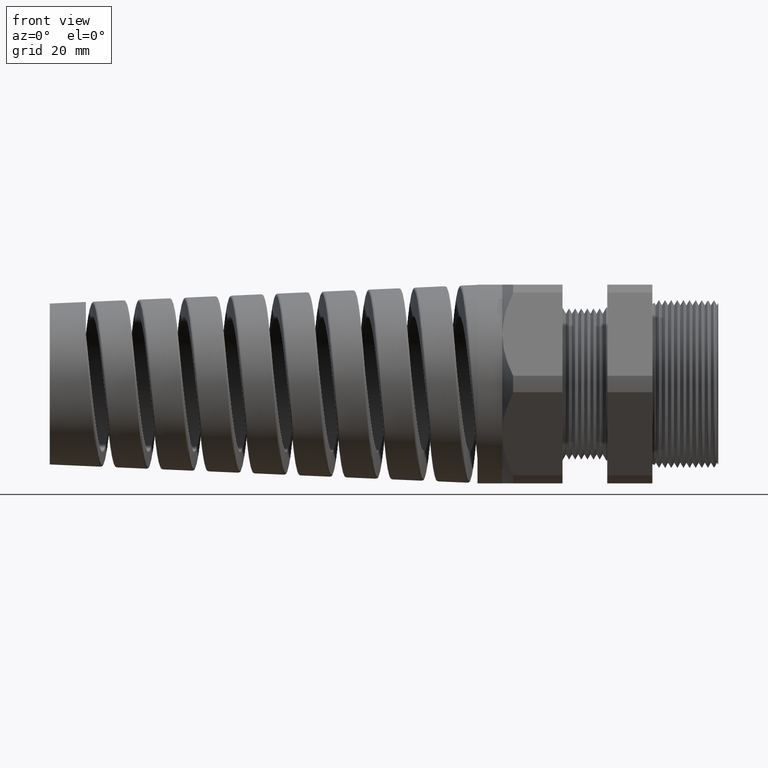
[diagram: clean part render]
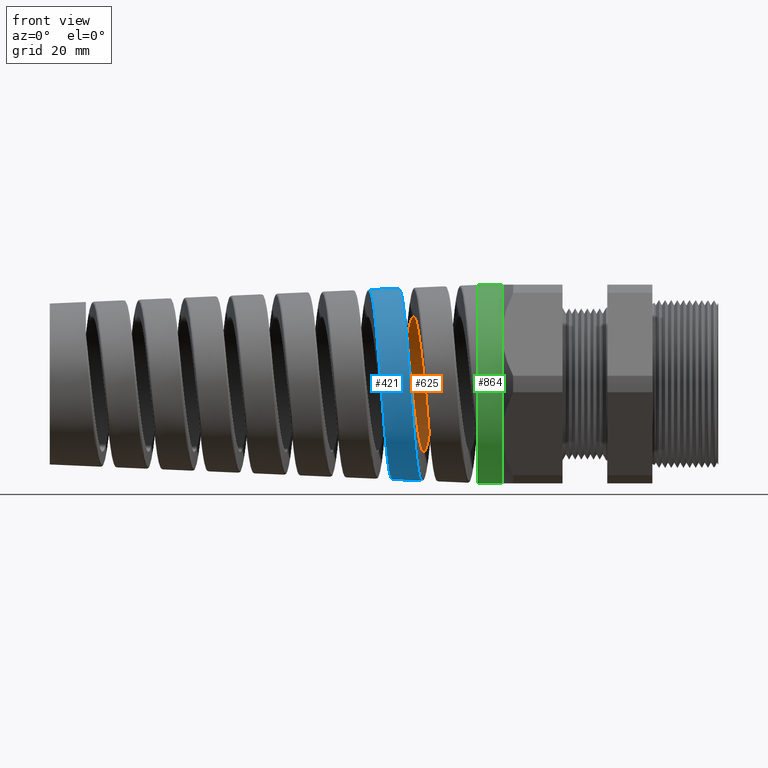
[diagram: same view with three faces highlighted in distinct colors, each labeled with its STEP entity id]
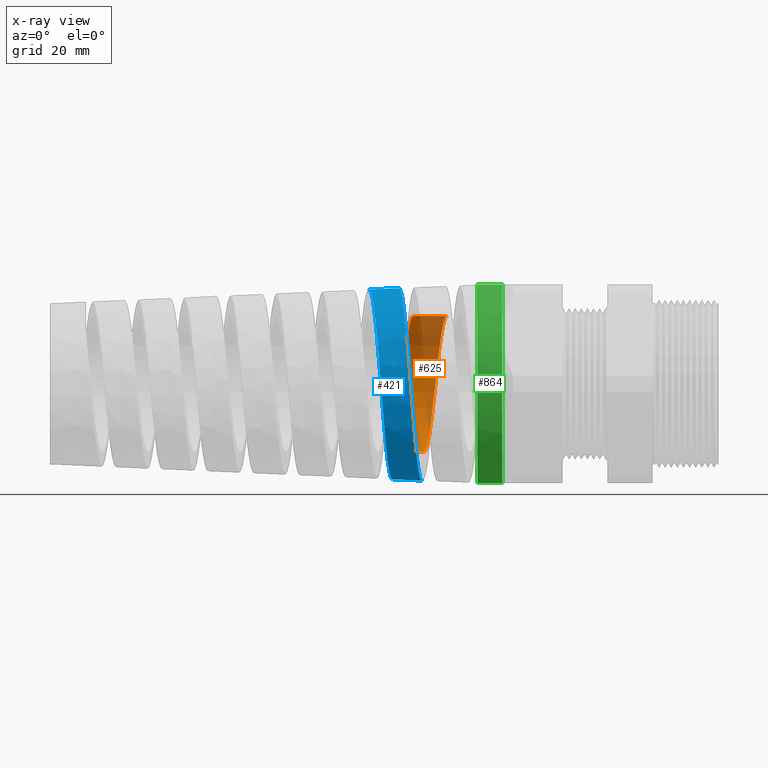
[diagram: x-ray of the same camera — body ghosted, the three highlighted faces saturated]
A machine part, front view with three faces highlighted in distinct colors.
The next image is the same camera in x-ray (body ghosted, the three faces saturated) — at least one of them is partly hidden behind the body in this view.
Their STEP definitions:

[orange] entity #625 — the highlighted cylindrical surface (partial cylindrical patch) has radius 11.2776 mm, axis along (1, 0, 0).
#534 = VERTEX_POINT ( 'NONE', #3127 ) ;
#536 = EDGE_CURVE ( 'NONE', #557, #534, #3153, .T. ) ;
#542 = VERTEX_POINT ( 'NONE', #3225 ) ;
#544 = EDGE_CURVE ( 'NONE', #542, #545, #3253, .T. ) ;
#545 = VERTEX_POINT ( 'NONE', #3249 ) ;
#557 = VERTEX_POINT ( 'NONE', #3331 ) ;
#602 = ORIENTED_EDGE ( 'NONE', *, *, #544, .F. ) ;
#603 = ORIENTED_EDGE ( 'NONE', *, *, #604, .T. ) ;
#604 = EDGE_CURVE ( 'NONE', #542, #557, #3755, .T. ) ;
#605 = ORIENTED_EDGE ( 'NONE', *, *, #536, .T. ) ;
#606 = ORIENTED_EDGE ( 'NONE', *, *, #607, .T. ) ;
#607 = EDGE_CURVE ( 'NONE', #534, #545, #3782, .T. ) ;
#625 = ADVANCED_FACE ( 'NONE', ( #4015 ), #4045, .F. ) ;
#626 = EDGE_LOOP ( 'NONE', ( #602, #603, #605, #606 ) ) ;
#3127 = CARTESIAN_POINT ( 'NONE',  ( -1.804156613593479000, -7.993109776149777300E-013, -0.4439999999999999500 ) ) ;
#3150 = DIRECTION ( 'NONE',  ( 1.000000000000000000, 0.0000000000000000000, 0.0000000000000000000 ) ) ;
#3151 = VECTOR ( 'NONE', #3150, 39.37007874015748100 ) ;
#3152 = CARTESIAN_POINT ( 'NONE',  ( 0.09602717987635048200, 0.0000000000000000000, -0.4439999999999999500 ) ) ;
#3153 = LINE ( 'NONE', #3152, #3151 ) ;
#3225 = CARTESIAN_POINT ( 'NONE',  ( -1.873335097499513500, -9.036739737416877400E-013, 0.4439999999999999500 ) ) ;
#3249 = CARTESIAN_POINT ( 'NONE',  ( -1.654087278508647300, -2.064225962009495700E-015, 0.4439999999999998400 ) ) ;
#3250 = DIRECTION ( 'NONE',  ( 1.000000000000000000, 0.0000000000000000000, 0.0000000000000000000 ) ) ;
#3251 = VECTOR ( 'NONE', #3250, 39.37007874015748100 ) ;
#3252 = CARTESIAN_POINT ( 'NONE',  ( 0.09602717987635048200, 5.437431788214247900E-017, 0.4439999999999999500 ) ) ;
#3253 = LINE ( 'NONE', #3252, #3251 ) ;
#3331 = CARTESIAN_POINT ( 'NONE',  ( -2.023267017907917500, 5.974188738582084800E-013, -0.4440000000000001200 ) ) ;
#3751 = CARTESIAN_POINT ( 'NONE',  ( -1.884240774798019200, 0.1006247164348107200, 0.4326898346896138600 ) ) ;
#3752 = CARTESIAN_POINT ( 'NONE',  ( -1.879570079397866200, 0.05799957447675929000, 0.4411477708951501700 ) ) ;
#3753 = CARTESIAN_POINT ( 'NONE',  ( -1.876473564830262000, 0.02919501560179628400, 0.4440000000000594000 ) ) ;
#3754 = CARTESIAN_POINT ( 'NONE',  ( -1.873335097499513500, -9.036739737416877400E-013, 0.4439999999999999500 ) ) ;
#3755 = B_SPLINE_CURVE_WITH_KNOTS ( 'NONE', 3,
 ( #3754, #3753, #3752, #3751, #3826, #3825, #3824, #3823, #3822, #3821, #3820, #3819, #3818, #3817, #3816, #3815, #3814, #3813, #3812, #3811, #3810, #3809, #3808, #3807, #3806, #3805, #3804, #3803, #3802, #3801, #3800, #3799, #3798, #3797, #3796, #3795, #3794, #3793, #3792, #3791, #3790, #3789, #3788, #3787, #3786, #3785, #3784, #3783 ),
 .UNSPECIFIED., .F., .F.,
 ( 4, 2, 2, 2, 2, 2, 2, 2, 2, 2, 2, 2, 2, 2, 2, 2, 2, 2, 2, 2, 2, 2, 2, 4 ),
 ( 0.1191075343456694400, 0.1213240954981226900, 0.1224323760743493000, 0.1235406566505759300, 0.1257572178030291800, 0.1268654983792557900, 0.1279737789554824300, 0.1301903401079356500, 0.1324069012603889000, 0.1335151818366155400, 0.1346234624128421500, 0.1368400235652954000, 0.1390565847177486500, 0.1412731458702019000, 0.1423814264464285100, 0.1434897070226551500, 0.1445979875988817600, 0.1457062681751084000, 0.1479228293275616500, 0.1490311099037882600, 0.1501393904800149000, 0.1523559516324681200, 0.1534642322086947600, 0.1545725127849213700 ),
 .UNSPECIFIED. ) ;
#3782 = B_SPLINE_CURVE_WITH_KNOTS ( 'NONE', 3,
 ( #3872, #3871, #3870, #3869, #3868, #3867, #3866, #3865, #3864, #3863, #3862, #3861, #3860, #3859, #3858, #3857, #3856, #3855, #3854, #3853, #3852, #3851, #3850, #3849, #3848, #3847, #3846, #3845, #3844, #3843, #3842, #3841, #3840, #3839, #3838, #3837, #3836, #3835, #3834, #3833, #3832, #3831, #3830, #3829, #3828, #3827, #3909 ),
 .UNSPECIFIED., .F., .F.,
 ( 4, 2, 2, 2, 2, 2, 2, 2, 2, 2, 2, 2, 2, 1, 2, 2, 2, 2, 2, 2, 2, 2, 2, 4 ),
 ( 0.5217600750463258200, 0.5239750681227484100, 0.5250825646609597100, 0.5261900611991710000, 0.5284050542755935900, 0.5306200473520161800, 0.5317275438902274700, 0.5328350404284387700, 0.5350500335048612400, 0.5361575300430725400, 0.5372650265812838300, 0.5394800196577064200, 0.5405875161959177200, 0.5416950127341290100, 0.5428025092723403100, 0.5439100058105516000, 0.5461249988869741900, 0.5472324954251854800, 0.5483399919633967800, 0.5505549850398193700, 0.5516624815780306600, 0.5527699781162419600, 0.5549849711926645400, 0.5571999642690871300 ),
 .UNSPECIFIED. ) ;
#3783 = CARTESIAN_POINT ( 'NONE',  ( -2.023267017907917500, 5.974188738582084800E-013, -0.4440000000000001200 ) ) ;
#3784 = CARTESIAN_POINT ( 'NONE',  ( -2.021710753485003800, 0.01447894811160286400, -0.4439999999999806300 ) ) ;
#3785 = CARTESIAN_POINT ( 'NONE',  ( -2.020150761367548200, 0.02899281427301372500, -0.4432935197495961300 ) ) ;
#3786 = CARTESIAN_POINT ( 'NONE',  ( -2.017007561947826500, 0.05809075079820869700, -0.4404261488639785700 ) ) ;
#3787 = CARTESIAN_POINT ( 'NONE',  ( -2.015431613133340100, 0.07260746070612968100, -0.4382636855171241900 ) ) ;
#3788 = CARTESIAN_POINT ( 'NONE',  ( -2.010748398774573300, 0.1153331790322962200, -0.4297416239873486600 ) ) ;
#3789 = CARTESIAN_POINT ( 'NONE',  ( -2.007654899336825100, 0.1430109742275536600, -0.4213421768619057800 ) ) ;
#3790 = CARTESIAN_POINT ( 'NONE',  ( -2.002967351662065200, 0.1833055066395086200, -0.4046559445055690800 ) ) ;
#3791 = CARTESIAN_POINT ( 'NONE',  ( -2.001388156907470100, 0.1966032185532649000, -0.3983669763372115800 ) ) ;
#3792 = CARTESIAN_POINT ( 'NONE',  ( -1.998250062426940100, 0.2223439874233220900, -0.3845935837195584300 ) ) ;
#3793 = CARTESIAN_POINT ( 'NONE',  ( -1.996691262655744300, 0.2347890506221657900, -0.3771200645692513500 ) ) ;
#3794 = CARTESIAN_POINT ( 'NONE',  ( -1.992024033823218900, 0.2708788302735031200, -0.3529850207597427500 ) ) ;
#3795 = CARTESIAN_POINT ( 'NONE',  ( -1.988925368499194300, 0.2932900676460246100, -0.3346253092082303600 ) ) ;
#3796 = CARTESIAN_POINT ( 'NONE',  ( -1.984205364831399300, 0.3243399332492596400, -0.3035686051545749600 ) ) ;
#3797 = CARTESIAN_POINT ( 'NONE',  ( -1.982633798874287700, 0.3341629949440410000, -0.2927143296583625300 ) ) ;
#3798 = CARTESIAN_POINT ( 'NONE',  ( -1.979514171935572000, 0.3525634137304311500, -0.2702695418948657400 ) ) ;
#3799 = CARTESIAN_POINT ( 'NONE',  ( -1.977960564786812100, 0.3611773135192382100, -0.2586428241237353500 ) ) ;
#3800 = CARTESIAN_POINT ( 'NONE',  ( -1.974851063271036100, 0.3772434275653239700, -0.2345901929545260200 ) ) ;
#3801 = CARTESIAN_POINT ( 'NONE',  ( -1.973295350324039100, 0.3846956752932833000, -0.2221642788047406300 ) ) ;
#3802 = CARTESIAN_POINT ( 'NONE',  ( -1.970167258698988700, 0.3984162827998202800, -0.1964998599647322400 ) ) ;
#3803 = CARTESIAN_POINT ( 'NONE',  ( -1.968586567679733200, 0.4047106303321518800, -0.1831881403775555400 ) ) ;
#3804 = CARTESIAN_POINT ( 'NONE',  ( -1.963885380510103500, 0.4214303403622504700, -0.1427684297647648600 ) ) ;
#3805 = CARTESIAN_POINT ( 'NONE',  ( -1.960790328172910000, 0.4298080193913166300, -0.1150707841376022400 ) ) ;
#3806 = CARTESIAN_POINT ( 'NONE',  ( -1.954558202884127700, 0.4411207960359969600, -0.05821221692821356600 ) ) ;
#3807 = CARTESIAN_POINT ( 'NONE',  ( -1.951393798377498300, 0.4440146795749524400, -0.02877798894754072000 ) ) ;
#3808 = CARTESIAN_POINT ( 'NONE',  ( -1.945159274529914400, 0.4439852057969564900, 0.02922918677190084300 ) ) ;
#3809 = CARTESIAN_POINT ( 'NONE',  ( -1.942064875775401300, 0.4411554494867839800, 0.05802125481865734500 ) ) ;
#3810 = CARTESIAN_POINT ( 'NONE',  ( -1.937368002073090300, 0.4326334891531947200, 0.1008782098313943400 ) ) ;
#3811 = CARTESIAN_POINT ( 'NONE',  ( -1.935786320091959400, 0.4290512896592893500, 0.1151656509510397800 ) ) ;
#3812 = CARTESIAN_POINT ( 'NONE',  ( -1.932654872872431300, 0.4205812588446530300, 0.1430368519855044800 ) ) ;
#3813 = CARTESIAN_POINT ( 'NONE',  ( -1.931098426322826100, 0.4156870006174683800, 0.1566829363183298600 ) ) ;
#3814 = CARTESIAN_POINT ( 'NONE',  ( -1.926434355738343700, 0.3990678745879169800, 0.1967682177959802500 ) ) ;
#3815 = CARTESIAN_POINT ( 'NONE',  ( -1.923327840876944300, 0.3854017028556949200, 0.2223982951074343600 ) ) ;
#3816 = CARTESIAN_POINT ( 'NONE',  ( -1.917025471781001800, 0.3528138392831169400, 0.2711417877072248000 ) ) ;
#3817 = CARTESIAN_POINT ( 'NONE',  ( -1.913924228714552600, 0.3343927970284820100, 0.2935212810924538500 ) ) ;
#3818 = CARTESIAN_POINT ( 'NONE',  ( -1.909258836442522900, 0.3036992177269642300, 0.3242099727671892100 ) ) ;
#3819 = CARTESIAN_POINT ( 'NONE',  ( -1.907701560389771100, 0.2929539592018784400, 0.3339559554893555300 ) ) ;
#3820 = CARTESIAN_POINT ( 'NONE',  ( -1.904567336763992400, 0.2704122685082130400, 0.3524568164457972900 ) ) ;
#3821 = CARTESIAN_POINT ( 'NONE',  ( -1.902986679538590800, 0.2585823730980703600, 0.3612241331537031100 ) ) ;
#3822 = CARTESIAN_POINT ( 'NONE',  ( -1.898294818323770000, 0.2222746961079832800, 0.3854566534239605200 ) ) ;
#3823 = CARTESIAN_POINT ( 'NONE',  ( -1.895200047126281300, 0.1967573812886922700, 0.3990800793602535800 ) ) ;
#3824 = CARTESIAN_POINT ( 'NONE',  ( -1.890520208696573300, 0.1565370532618622400, 0.4157436050795435000 ) ) ;
#3825 = CARTESIAN_POINT ( 'NONE',  ( -1.888948495100799100, 0.1427538770939663100, 0.4206799311003589500 ) ) ;
#3826 = CARTESIAN_POINT ( 'NONE',  ( -1.885801929612058100, 0.1147354750193612000, 0.4291690163886989200 ) ) ;
#3827 = CARTESIAN_POINT ( 'NONE',  ( -1.657199796367902800, 0.02892940424544281100, 0.4440000000000005100 ) ) ;
#3828 = CARTESIAN_POINT ( 'NONE',  ( -1.660317270808932700, 0.05790223333831248700, 0.4411818936953143000 ) ) ;
#3829 = CARTESIAN_POINT ( 'NONE',  ( -1.666620161748849600, 0.1153639235958358700, 0.4297502729292002100 ) ) ;
#3830 = CARTESIAN_POINT ( 'NONE',  ( -1.669722330881802800, 0.1430862531025257300, 0.4213076092335549800 ) ) ;
#3831 = CARTESIAN_POINT ( 'NONE',  ( -1.674393307353202900, 0.1832012550362696900, 0.4047008086344639500 ) ) ;
#3832 = CARTESIAN_POINT ( 'NONE',  ( -1.675953161532201200, 0.1963264155146055000, 0.3985033188049736400 ) ) ;
#3833 = CARTESIAN_POINT ( 'NONE',  ( -1.679093649045415800, 0.2220698067504008900, 0.3847518128056470200 ) ) ;
#3834 = CARTESIAN_POINT ( 'NONE',  ( -1.680675328612190700, 0.2346920700207728000, 0.3771831720170789600 ) ) ;
#3835 = CARTESIAN_POINT ( 'NONE',  ( -1.685369370394721200, 0.2709623128199503100, 0.3529326805004977000 ) ) ;
#3836 = CARTESIAN_POINT ( 'NONE',  ( -1.688466017254198500, 0.2933211091044129500, 0.3345774891453626200 ) ) ;
#3837 = CARTESIAN_POINT ( 'NONE',  ( -1.693152403073675500, 0.3241326968422056900, 0.3037841950465219300 ) ) ;
#3838 = CARTESIAN_POINT ( 'NONE',  ( -1.694728471351159000, 0.3339873057174051500, 0.2929205253866905000 ) ) ;
#3839 = CARTESIAN_POINT ( 'NONE',  ( -1.697876244408849500, 0.3525422189021085200, 0.2703034192620657500 ) ) ;
#3840 = CARTESIAN_POINT ( 'NONE',  ( -1.699438580748270100, 0.3611934685699717500, 0.2586213904563533500 ) ) ;
#3841 = CARTESIAN_POINT ( 'NONE',  ( -1.704113266577388600, 0.3853223863082773100, 0.2224896401328254100 ) ) ;
#3842 = CARTESIAN_POINT ( 'NONE',  ( -1.707212864384856800, 0.3989923664753729500, 0.1969643855319085600 ) ) ;
#3843 = CARTESIAN_POINT ( 'NONE',  ( -1.711928187565247900, 0.4157717538125960700, 0.1564714611358674300 ) ) ;
#3844 = CARTESIAN_POINT ( 'NONE',  ( -1.713507271897957400, 0.4207172251481137200, 0.1426329571543229800 ) ) ;
#3845 = CARTESIAN_POINT ( 'NONE',  ( -1.716633991182829000, 0.4291428781263678700, 0.1148195721832000300 ) ) ;
#3846 = CARTESIAN_POINT ( 'NONE',  ( -1.719746528063548700, 0.4361665382895751900, 0.08672518910772994400 ) ) ;
#3847 = CARTESIAN_POINT ( 'NONE',  ( -1.722858667757319200, 0.4404247334081164400, 0.05807957041475189700 ) ) ;
#3848 = CARTESIAN_POINT ( 'NONE',  ( -1.725985415732247000, 0.4432799499133505100, 0.02915593082015662300 ) ) ;
#3849 = CARTESIAN_POINT ( 'NONE',  ( -1.727564664377471800, 0.4440043679721974400, 0.01447530263190974200 ) ) ;
#3850 = CARTESIAN_POINT ( 'NONE',  ( -1.732279248929962800, 0.4439912039677694200, -0.02935069774219408900 ) ) ;
#3851 = CARTESIAN_POINT ( 'NONE',  ( -1.735379182371178200, 0.4411260216994473700, -0.05816265173437516800 ) ) ;
#3852 = CARTESIAN_POINT ( 'NONE',  ( -1.740054485864617900, 0.4326539683624838200, -0.1007785142254228300 ) ) ;
#3853 = CARTESIAN_POINT ( 'NONE',  ( -1.741616868681738600, 0.4291293069141579600, -0.1148827803200254000 ) ) ;
#3854 = CARTESIAN_POINT ( 'NONE',  ( -1.744764699031141400, 0.4206362862053410500, -0.1428815243271964700 ) ) ;
#3855 = CARTESIAN_POINT ( 'NONE',  ( -1.746340233115880200, 0.4156881571209371000, -0.1566849202283322500 ) ) ;
#3856 = CARTESIAN_POINT ( 'NONE',  ( -1.751025929672191900, 0.3990011961780918200, -0.1969194714564570500 ) ) ;
#3857 = CARTESIAN_POINT ( 'NONE',  ( -1.754122813937773600, 0.3853649912945718600, -0.2224320986375387400 ) ) ;
#3858 = CARTESIAN_POINT ( 'NONE',  ( -1.758817889909983300, 0.3611279390283105900, -0.2587163802469920100 ) ) ;
#3859 = CARTESIAN_POINT ( 'NONE',  ( -1.760399870389687000, 0.3523598705766871100, -0.2705391391806246100 ) ) ;
#3860 = CARTESIAN_POINT ( 'NONE',  ( -1.763539717737658800, 0.3338372512539678500, -0.2930897369349674300 ) ) ;
#3861 = CARTESIAN_POINT ( 'NONE',  ( -1.765099249312348100, 0.3240819835579595900, -0.3038359737722674000 ) ) ;
#3862 = CARTESIAN_POINT ( 'NONE',  ( -1.769769700834942700, 0.2933720447754787400, -0.3345243899094179600 ) ) ;
#3863 = CARTESIAN_POINT ( 'NONE',  ( -1.772872155491893600, 0.2709870476383851000, -0.3529311630880785400 ) ) ;
#3864 = CARTESIAN_POINT ( 'NONE',  ( -1.779176451505404500, 0.2222615744692593200, -0.3854791542754523700 ) ) ;
#3865 = CARTESIAN_POINT ( 'NONE',  ( -1.782292895462469900, 0.1965790955881643900, -0.3991611171831285800 ) ) ;
#3866 = CARTESIAN_POINT ( 'NONE',  ( -1.786961349471784000, 0.1564850024365615500, -0.4157615645844565100 ) ) ;
#3867 = CARTESIAN_POINT ( 'NONE',  ( -1.788518678690426800, 0.1428391514983896600, -0.4206482339782531800 ) ) ;
#3868 = CARTESIAN_POINT ( 'NONE',  ( -1.791651012337978700, 0.1149756788022974800, -0.4291020312626754300 ) ) ;
#3869 = CARTESIAN_POINT ( 'NONE',  ( -1.793233733488104300, 0.1006865548184534400, -0.4326784581861007300 ) ) ;
#3870 = CARTESIAN_POINT ( 'NONE',  ( -1.797937879306752200, 0.05779723209974761700, -0.4411861307426281900 ) ) ;
#3871 = CARTESIAN_POINT ( 'NONE',  ( -1.801036866153206800, 0.02899739432727926500, -0.4440000000000524600 ) ) ;
#3872 = CARTESIAN_POINT ( 'NONE',  ( -1.804156613593479000, -7.993109776149777300E-013, -0.4439999999999999500 ) ) ;
#3909 = CARTESIAN_POINT ( 'NONE',  ( -1.654087278508647300, -2.064225962009495700E-015, 0.4439999999999998400 ) ) ;
#4015 = FACE_OUTER_BOUND ( 'NONE', #626, .T. ) ;
#4041 = DIRECTION ( 'NONE',  ( 0.0000000000000000000, 0.0000000000000000000, -1.000000000000000000 ) ) ;
#4042 = DIRECTION ( 'NONE',  ( 1.000000000000000000, 0.0000000000000000000, 0.0000000000000000000 ) ) ;
#4043 = CARTESIAN_POINT ( 'NONE',  ( 0.09602717987635048200, 0.0000000000000000000, 0.0000000000000000000 ) ) ;
#4044 = AXIS2_PLACEMENT_3D ( 'NONE', #4043, #4042, #4041 ) ;
#4045 = CYLINDRICAL_SURFACE ( 'NONE', #4044, 0.4439999999999999500 ) ;

[blue] entity #421 — the highlighted conical surface has half-angle 2.5 deg.
#421 = ADVANCED_FACE ( 'NONE', ( #2300 ), #2330, .T. ) ;
#422 = EDGE_LOOP ( 'NONE', ( #423, #424, #426, #427 ) ) ;
#423 = ORIENTED_EDGE ( 'NONE', *, *, #10552, .F. ) ;
#424 = ORIENTED_EDGE ( 'NONE', *, *, #425, .T. ) ;
#425 = EDGE_CURVE ( 'NONE', #10554, #8501, #2322, .T. ) ;
#426 = ORIENTED_EDGE ( 'NONE', *, *, #10241, .T. ) ;
#427 = ORIENTED_EDGE ( 'NONE', *, *, #428, .T. ) ;
#428 = EDGE_CURVE ( 'NONE', #10469, #10541, #2377, .T. ) ;
#2300 = FACE_OUTER_BOUND ( 'NONE', #422, .T. ) ;
#2301 = CARTESIAN_POINT ( 'NONE',  ( -2.101177916237996000, -0.5880019439150867600, 0.1971075326660144400 ) ) ;
#2302 = CARTESIAN_POINT ( 'NONE',  ( -2.102756272108055900, -0.5810944355347187300, 0.2164154940288560700 ) ) ;
#2303 = CARTESIAN_POINT ( 'NONE',  ( -2.107449402827741300, -0.5577997892330816000, 0.2726673551458636000 ) ) ;
#2304 = CARTESIAN_POINT ( 'NONE',  ( -2.110551499157240900, -0.5387571312938113100, 0.3083274045683122600 ) ) ;
#2305 = CARTESIAN_POINT ( 'NONE',  ( -2.115253412344783300, -0.5049008074553015300, 0.3590358586188831500 ) ) ;
#2306 = CARTESIAN_POINT ( 'NONE',  ( -2.116837813739518700, -0.4926507021473570100, 0.3755583658109951700 ) ) ;
#2307 = CARTESIAN_POINT ( 'NONE',  ( -2.119984384421933900, -0.4667606770903374700, 0.4070788281161318300 ) ) ;
#2308 = CARTESIAN_POINT ( 'NONE',  ( -2.121547621648165500, -0.4531245886464841400, 0.4220964508009810200 ) ) ;
#2309 = CARTESIAN_POINT ( 'NONE',  ( -2.126230533482384600, -0.4101949999086256200, 0.4649746943776680300 ) ) ;
#2310 = CARTESIAN_POINT ( 'NONE',  ( -2.129342671293774200, -0.3788998008293413300, 0.4906818952709809400 ) ) ;
#2311 = CARTESIAN_POINT ( 'NONE',  ( -2.134085735180303100, -0.3277965732264756500, 0.5247566088803378200 ) ) ;
#2312 = CARTESIAN_POINT ( 'NONE',  ( -2.135661715609013600, -0.3102528823989730800, 0.5352289777212152500 ) ) ;
#2313 = CARTESIAN_POINT ( 'NONE',  ( -2.138793929508471200, -0.2744578442330520800, 0.5542839558370201700 ) ) ;
#2314 = CARTESIAN_POINT ( 'NONE',  ( -2.140354255967412000, -0.2561621609273880800, 0.5628961848766075300 ) ) ;
#2315 = CARTESIAN_POINT ( 'NONE',  ( -2.143478666213264500, -0.2187822948477647400, 0.5783051569671139300 ) ) ;
#2316 = CARTESIAN_POINT ( 'NONE',  ( -2.145042725649516600, -0.1996981330625182400, 0.5851019530685420700 ) ) ;
#2317 = CARTESIAN_POINT ( 'NONE',  ( -2.148189632958734700, -0.1607262501938429300, 0.5968424700484323800 ) ) ;
#2318 = CARTESIAN_POINT ( 'NONE',  ( -2.149779723179701100, -0.1407430919308601000, 0.6017972935641875400 ) ) ;
#2319 = CARTESIAN_POINT ( 'NONE',  ( -2.154503684815540800, -0.08079159869143708000, 0.6135393720245058100 ) ) ;
#2320 = CARTESIAN_POINT ( 'NONE',  ( -2.157615761355624600, -0.04053565161293747100, 0.6173583909260135200 ) ) ;
#2321 = CARTESIAN_POINT ( 'NONE',  ( -2.160752234427024500, 9.981433641789831200E-013, 0.6172214495542435200 ) ) ;
#2322 = B_SPLINE_CURVE_WITH_KNOTS ( 'NONE', 3,
 ( #2321, #2320, #2319, #2318, #2317, #2316, #2315, #2314, #2313, #2312, #2311, #2310, #2309, #2308, #2307, #2306, #2305, #2304, #2303, #2302, #2301, #7350, #7355, #7365, #6417, #6365, #6420, #6366, #6351, #6349, #6345, #6358, #6404, #6369, #6399, #6367, #6423, #6387, #6430, #6392, #6350, #6393, #6396, #6440, #6418, #6360, #6389, #6368, #6434, #6403, #6352 ),
 .UNSPECIFIED., .F., .F.,
 ( 4, 2, 2, 2, 2, 2, 2, 2, 2, 2, 2, 2, 2, 2, 1, 2, 2, 2, 2, 2, 2, 2, 2, 2, 2, 4 ),
 ( 0.5751097450842735900, 0.5782421380648744600, 0.5798083345551747800, 0.5813745310454752100, 0.5829407275357756400, 0.5845069240260760700, 0.5876393170066768200, 0.5892055134969772500, 0.5907717099872776800, 0.5939041029678784300, 0.5954702994581788600, 0.5970364959484793000, 0.6001688889290800500, 0.6017350854193804800, 0.6033012819096809100, 0.6048674783999813400, 0.6064336748902817700, 0.6095660678708825200, 0.6111322643611829500, 0.6126984608514833800, 0.6158308538320841400, 0.6173970503223845700, 0.6189632468126850000, 0.6220956397932857500, 0.6236618362835861800, 0.6252280327738866100 ),
 .UNSPECIFIED. ) ;
#2326 = DIRECTION ( 'NONE',  ( 0.0000000000000000000, 0.0000000000000000000, -1.000000000000000000 ) ) ;
#2327 = DIRECTION ( 'NONE',  ( 1.000000000000000000, 0.0000000000000000000, 0.0000000000000000000 ) ) ;
#2328 = CARTESIAN_POINT ( 'NONE',  ( -1.409999999999999900, 0.0000000000000000000, 0.0000000000000000000 ) ) ;
#2329 = AXIS2_PLACEMENT_3D ( 'NONE', #2328, #2327, #2326 ) ;
#2330 = CONICAL_SURFACE ( 'NONE', #2329, 0.6499999999999999100, 0.04363323129985853500 ) ;
#2340 = CARTESIAN_POINT ( 'NONE',  ( -1.933199666184561600, -0.4156695763061982700, 0.4714264758156021000 ) ) ;
#2341 = CARTESIAN_POINT ( 'NONE',  ( -1.928495615600490400, -0.4594058263826841200, 0.4277312624969730700 ) ) ;
#2342 = CARTESIAN_POINT ( 'NONE',  ( -1.926910985239512300, -0.4734150260096712800, 0.4122802380213410100 ) ) ;
#2343 = CARTESIAN_POINT ( 'NONE',  ( -1.923768100199344500, -0.4996193845943843700, 0.3803281014551450100 ) ) ;
#2344 = CARTESIAN_POINT ( 'NONE',  ( -1.922207013495257100, -0.5118500259072822400, 0.3638094538552512100 ) ) ;
#2345 = CARTESIAN_POINT ( 'NONE',  ( -1.917531291950154100, -0.5459891846466994300, 0.3126663276456186400 ) ) ;
#2346 = CARTESIAN_POINT ( 'NONE',  ( -1.914424219653037400, -0.5653697832304667200, 0.2764701051072359100 ) ) ;
#2347 = CARTESIAN_POINT ( 'NONE',  ( -1.908112902749911300, -0.5971067132893996800, 0.1997209242049769700 ) ) ;
#2348 = CARTESIAN_POINT ( 'NONE',  ( -1.905001778751910900, -0.6089760666026371400, 0.1603084607724182800 ) ) ;
#2349 = CARTESIAN_POINT ( 'NONE',  ( -1.900333805568873000, -0.6209231952316028900, 0.1000080487534630200 ) ) ;
#2350 = CARTESIAN_POINT ( 'NONE',  ( -1.898776321737569300, -0.6239292210957898500, 0.07969247303472007400 ) ) ;
#2351 = CARTESIAN_POINT ( 'NONE',  ( -1.895643133516786000, -0.6279481403251276900, 0.03862270903874850900 ) ) ;
#2352 = CARTESIAN_POINT ( 'NONE',  ( -1.894060691844956300, -0.6289526295020397800, 0.01777942744618654000 ) ) ;
#2353 = CARTESIAN_POINT ( 'NONE',  ( -1.889362112147772200, -0.6288768119018763900, -0.04412266959869418800 ) ) ;
#2354 = CARTESIAN_POINT ( 'NONE',  ( -1.886268424009380800, -0.6248036113178038200, -0.08490260406829014400 ) ) ;
#2355 = CARTESIAN_POINT ( 'NONE',  ( -1.881594571210707200, -0.6127429771251692300, -0.1453434454950237600 ) ) ;
#2356 = CARTESIAN_POINT ( 'NONE',  ( -1.880028860087878700, -0.6077152429242409500, -0.1653967011479128300 ) ) ;
#2357 = CARTESIAN_POINT ( 'NONE',  ( -1.876879844372131500, -0.5956248321121989700, -0.2051293643774635700 ) ) ;
#2358 = CARTESIAN_POINT ( 'NONE',  ( -1.875318191485644500, -0.5886485487835397800, -0.2245351928898518000 ) ) ;
#2359 = CARTESIAN_POINT ( 'NONE',  ( -1.870648902249958800, -0.5650215374637891400, -0.2814163568732303000 ) ) ;
#2360 = CARTESIAN_POINT ( 'NONE',  ( -1.867558139305488300, -0.5456975895323594700, -0.3175678381758698700 ) ) ;
#2361 = CARTESIAN_POINT ( 'NONE',  ( -1.862864876088986800, -0.5112607458044998700, -0.3690878309793786900 ) ) ;
#2362 = CARTESIAN_POINT ( 'NONE',  ( -1.861287229822812300, -0.4988270907499630100, -0.3858366522986710300 ) ) ;
#2363 = CARTESIAN_POINT ( 'NONE',  ( -1.858165741724073100, -0.4726574880462378100, -0.4176902067780121600 ) ) ;
#2364 = CARTESIAN_POINT ( 'NONE',  ( -1.855061315932678100, -0.4450715234094725400, -0.4480901312425475400 ) ) ;
#2365 = CARTESIAN_POINT ( 'NONE',  ( -1.851961358880574100, -0.4147063511493148100, -0.4756345561223293000 ) ) ;
#2366 = CARTESIAN_POINT ( 'NONE',  ( -1.848850035738585800, -0.3829383550997191900, -0.5017361627528979000 ) ) ;
#2367 = CARTESIAN_POINT ( 'NONE',  ( -1.847282875198531700, -0.3662917366394140000, -0.5141060991773353000 ) ) ;
#2368 = CARTESIAN_POINT ( 'NONE',  ( -1.842577197989007500, -0.3145792660958423600, -0.5486930117921525700 ) ) ;
#2369 = CARTESIAN_POINT ( 'NONE',  ( -1.839489076715147100, -0.2783806970927020200, -0.5680312633302053700 ) ) ;
#2370 = CARTESIAN_POINT ( 'NONE',  ( -1.834839006341246700, -0.2215925146542955500, -0.5916481856751233400 ) ) ;
#2371 = CARTESIAN_POINT ( 'NONE',  ( -1.833286149148758000, -0.2022450569907659200, -0.5986156021266938500 ) ) ;
#2372 = CARTESIAN_POINT ( 'NONE',  ( -1.830160340541086700, -0.1626935574148835300, -0.6106937867933981400 ) ) ;
#2373 = CARTESIAN_POINT ( 'NONE',  ( -1.828587539840351100, -0.1424857216990433300, -0.6157899887719080500 ) ) ;
#2374 = CARTESIAN_POINT ( 'NONE',  ( -1.823919869418907400, -0.08190636719572666500, -0.6279497774691570300 ) ) ;
#2375 = CARTESIAN_POINT ( 'NONE',  ( -1.820840834425826400, -0.04114010421143837100, -0.6320623017836967100 ) ) ;
#2376 = CARTESIAN_POINT ( 'NONE',  ( -1.817734598575230200, 7.424648669506968100E-013, -0.6321979229697816100 ) ) ;
#2377 = B_SPLINE_CURVE_WITH_KNOTS ( 'NONE', 3,
 ( #2376, #2375, #2374, #2373, #2372, #2371, #2370, #2369, #2368, #2367, #2366, #2365, #2364, #2363, #2362, #2361, #2360, #2359, #2358, #2357, #2356, #2355, #2354, #2353, #2352, #2351, #2350, #2349, #2348, #2347, #2346, #2345, #2344, #2343, #2342, #2341, #2340, #2412, #2411, #2410, #2409, #2408, #2407, #2406, #2405, #2404, #2403, #2402, #2401 ),
 .UNSPECIFIED., .F., .F.,
 ( 4, 2, 2, 2, 2, 2, 1, 2, 2, 2, 2, 2, 2, 2, 2, 2, 2, 2, 2, 2, 2, 2, 2, 2, 4 ),
 ( 0.1211753246788525400, 0.1243320070424738200, 0.1259103482242844600, 0.1274886894060950900, 0.1306453717697163800, 0.1322237129515270200, 0.1338020541333376500, 0.1353803953151482800, 0.1369587364969589200, 0.1401154188605802100, 0.1416937600423908400, 0.1432721012242014800, 0.1464287835878227400, 0.1480071247696334000, 0.1495854659514440400, 0.1527421483150653000, 0.1558988306786866000, 0.1574771718604972300, 0.1590555130423078600, 0.1622121954059291300, 0.1637905365877397600, 0.1653688777695503900, 0.1685255601331716600, 0.1701039013149822900, 0.1716822424967929300 ),
 .UNSPECIFIED. ) ;
#2401 = CARTESIAN_POINT ( 'NONE',  ( -1.967688787628525200, -6.420378185926834600E-016, 0.6256507816826334400 ) ) ;
#2402 = CARTESIAN_POINT ( 'NONE',  ( -1.966126037686260600, -0.02048630044164912900, 0.6257190128186428400 ) ) ;
#2403 = CARTESIAN_POINT ( 'NONE',  ( -1.964563761299096000, -0.04097426158569903600, 0.6247834582097061600 ) ) ;
#2404 = CARTESIAN_POINT ( 'NONE',  ( -1.961424631579580500, -0.08195235974743581000, 0.6208773041232441600 ) ) ;
#2405 = CARTESIAN_POINT ( 'NONE',  ( -1.959839213852564900, -0.1025525989017551500, 0.6178827997825082600 ) ) ;
#2406 = CARTESIAN_POINT ( 'NONE',  ( -1.955104979361241800, -0.1634739988394581800, 0.6059011876031675800 ) ) ;
#2407 = CARTESIAN_POINT ( 'NONE',  ( -1.951993729492046000, -0.2027329576198586300, 0.5940368388666177300 ) ) ;
#2408 = CARTESIAN_POINT ( 'NONE',  ( -1.947304741385251100, -0.2596359423431169900, 0.5705816390049847100 ) ) ;
#2409 = CARTESIAN_POINT ( 'NONE',  ( -1.945738051917322400, -0.2782703133937695100, 0.5618133341764368600 ) ) ;
#2410 = CARTESIAN_POINT ( 'NONE',  ( -1.942581301954765100, -0.3148509731735681900, 0.5423192790100289700 ) ) ;
#2411 = CARTESIAN_POINT ( 'NONE',  ( -1.941001974986141600, -0.3326671533072047500, 0.5316518434836354800 ) ) ;
#2412 = CARTESIAN_POINT ( 'NONE',  ( -1.936304439380838400, -0.3839781882752437700, 0.4974009093116548700 ) ) ;
#6345 = CARTESIAN_POINT ( 'NONE',  ( -2.069928234062591100, -0.5878120934142235800, -0.2018978947322409300 ) ) ;
#6349 = CARTESIAN_POINT ( 'NONE',  ( -2.073052063037494000, -0.5996163646405290300, -0.1630233247105791500 ) ) ;
#6350 = CARTESIAN_POINT ( 'NONE',  ( -2.037174013375085700, -0.3278183684380671100, -0.5297172605275395400 ) ) ;
#6351 = CARTESIAN_POINT ( 'NONE',  ( -2.076160879961367100, -0.6094602351150401100, -0.1237617201983433100 ) ) ;
#6352 = CARTESIAN_POINT ( 'NONE',  ( -2.010707904458239000, -6.551358155372574600E-015, -0.6237725264787565800 ) ) ;
#6358 = CARTESIAN_POINT ( 'NONE',  ( -2.068350126451156800, -0.5808834179260900000, -0.2212459669805342300 ) ) ;
#6360 = CARTESIAN_POINT ( 'NONE',  ( -2.023176607499505200, -0.1611705493494619600, -0.6034189101924045700 ) ) ;
#6365 = CARTESIAN_POINT ( 'NONE',  ( -2.083972552236781800, -0.6204898860810264000, -0.02283021658536907300 ) ) ;
#6366 = CARTESIAN_POINT ( 'NONE',  ( -2.079269993490445100, -0.6154400892682270200, -0.08373961167676988200 ) ) ;
#6367 = CARTESIAN_POINT ( 'NONE',  ( -2.054325098361927900, -0.4924669600723626300, -0.3802822455991689000 ) ) ;
#6368 = CARTESIAN_POINT ( 'NONE',  ( -2.016907455987038600, -0.08075296174605206500, -0.6185827197377210500 ) ) ;
#6369 = CARTESIAN_POINT ( 'NONE',  ( -2.060548451552470400, -0.5382996753608748600, -0.3134560680403077900 ) ) ;
#6387 = CARTESIAN_POINT ( 'NONE',  ( -2.049613873363580900, -0.4527639107942179100, -0.4270740888633284800 ) ) ;
#6389 = CARTESIAN_POINT ( 'NONE',  ( -2.018470143219998300, -0.1009520423559711300, -0.6155464396662336800 ) ) ;
#6392 = CARTESIAN_POINT ( 'NONE',  ( -2.041852966252791100, -0.3784942638701199200, -0.4957751810461705800 ) ) ;
#6393 = CARTESIAN_POINT ( 'NONE',  ( -2.035597915162002700, -0.3101824579894073000, -0.5403147973886807100 ) ) ;
#6396 = CARTESIAN_POINT ( 'NONE',  ( -2.032471245182310600, -0.2742400267965587300, -0.5595673987308044100 ) ) ;
#6399 = CARTESIAN_POINT ( 'NONE',  ( -2.055883816714404200, -0.5045629876077261100, -0.3639523844661931600 ) ) ;
#6403 = CARTESIAN_POINT ( 'NONE',  ( -2.012255585632263700, -0.02021455222337988100, -0.6237049532593769200 ) ) ;
#6404 = CARTESIAN_POINT ( 'NONE',  ( -2.063642832931157100, -0.5574129159791999500, -0.2777970273313669600 ) ) ;
#6417 = CARTESIAN_POINT ( 'NONE',  ( -2.088689706942613400, -0.6205214551042883600, 0.03844448765294440600 ) ) ;
#6418 = CARTESIAN_POINT ( 'NONE',  ( -2.026266903313393500, -0.1998931950143967600, -0.5915435167074275500 ) ) ;
#6420 = CARTESIAN_POINT ( 'NONE',  ( -2.082394420635453900, -0.6194608288629278600, -0.04333311054835570900 ) ) ;
#6423 = CARTESIAN_POINT ( 'NONE',  ( -2.051184230545355400, -0.4665220276376888000, -0.4119054105241553600 ) ) ;
#6430 = CARTESIAN_POINT ( 'NONE',  ( -2.044941426429284900, -0.4097263333392079900, -0.4701066741101191900 ) ) ;
#6434 = CARTESIAN_POINT ( 'NONE',  ( -2.013802052444645200, -0.04040836158761344100, -0.6226571122945879800 ) ) ;
#6440 = CARTESIAN_POINT ( 'NONE',  ( -2.030918169198496300, -0.2559131854885715600, -0.5682512839522450000 ) ) ;
#7350 = CARTESIAN_POINT ( 'NONE',  ( -2.098028753904961400, -0.5998410918924729200, 0.1579835255672789300 ) ) ;
#7355 = CARTESIAN_POINT ( 'NONE',  ( -2.096466151042489100, -0.6047519646741552600, 0.1382738369144085000 ) ) ;
#7365 = CARTESIAN_POINT ( 'NONE',  ( -2.091790451515442900, -0.6165470186895721800, 0.07871645953914045700 ) ) ;
#8501 = VERTEX_POINT ( 'NONE', #13987 ) ;
#10241 = EDGE_CURVE ( 'NONE', #8501, #10469, #10940, .T. ) ;
#10469 = VERTEX_POINT ( 'NONE', #11451 ) ;
#10541 = VERTEX_POINT ( 'NONE', #11450 ) ;
#10552 = EDGE_CURVE ( 'NONE', #10554, #10541, #11318, .T. ) ;
#10554 = VERTEX_POINT ( 'NONE', #11313 ) ;
#10884 = DIRECTION ( 'NONE',  ( 0.9990482215818576900, 0.0000000000000000000, -0.04361938736533629800 ) ) ;
#10885 = VECTOR ( 'NONE', #10884, 39.37007874015748100 ) ;
#10886 = CARTESIAN_POINT ( 'NONE',  ( -1.409999999999999900, 0.0000000000000000000, -0.6499999999999999100 ) ) ;
#10940 = LINE ( 'NONE', #10886, #10885 ) ;
#11313 = CARTESIAN_POINT ( 'NONE',  ( -2.160752234427024500, 9.981433641789831200E-013, 0.6172214495542435200 ) ) ;
#11315 = DIRECTION ( 'NONE',  ( 0.9990482215818576900, 5.341834311772759500E-018, 0.04361938736533629800 ) ) ;
#11316 = VECTOR ( 'NONE', #11315, 39.37007874015748100 ) ;
#11317 = CARTESIAN_POINT ( 'NONE',  ( -1.409999999999999900, 7.960204194457794200E-017, 0.6499999999999999100 ) ) ;
#11318 = LINE ( 'NONE', #11317, #11316 ) ;
#11450 = CARTESIAN_POINT ( 'NONE',  ( -1.967688787628525200, -6.420378185926834600E-016, 0.6256507816826334400 ) ) ;
#11451 = CARTESIAN_POINT ( 'NONE',  ( -1.817734598575230200, 7.424648669506968100E-013, -0.6321979229697816100 ) ) ;
#13987 = CARTESIAN_POINT ( 'NONE',  ( -2.010707904458239000, -6.551358155372574600E-015, -0.6237725264787565800 ) ) ;

[green] entity #864 — the highlighted cylindrical surface (partial cylindrical patch) has radius 16.51 mm, axis along (1, 0, 0).
#400 = VERTEX_POINT ( 'NONE', #2114 ) ;
#402 = EDGE_CURVE ( 'NONE', #416, #400, #2113, .T. ) ;
#415 = VERTEX_POINT ( 'NONE', #2220 ) ;
#416 = VERTEX_POINT ( 'NONE', #2219 ) ;
#472 = EDGE_CURVE ( 'NONE', #415, #473, #2712, .T. ) ;
#473 = VERTEX_POINT ( 'NONE', #2704 ) ;
#773 = VERTEX_POINT ( 'NONE', #4585 ) ;
#804 = VERTEX_POINT ( 'NONE', #4637 ) ;
#864 = ADVANCED_FACE ( 'NONE', ( #4855 ), #4854, .T. ) ;
#865 = EDGE_LOOP ( 'NONE', ( #866, #867, #869, #870, #925, #927 ) ) ;
#866 = ORIENTED_EDGE ( 'NONE', *, *, #472, .F. ) ;
#867 = ORIENTED_EDGE ( 'NONE', *, *, #868, .F. ) ;
#868 = EDGE_CURVE ( 'NONE', #416, #415, #4880, .T. ) ;
#869 = ORIENTED_EDGE ( 'NONE', *, *, #402, .T. ) ;
#870 = ORIENTED_EDGE ( 'NONE', *, *, #871, .F. ) ;
#871 = EDGE_CURVE ( 'NONE', #773, #400, #4876, .T. ) ;
#925 = ORIENTED_EDGE ( 'NONE', *, *, #926, .F. ) ;
#926 = EDGE_CURVE ( 'NONE', #804, #773, #4955, .T. ) ;
#927 = ORIENTED_EDGE ( 'NONE', *, *, #928, .F. ) ;
#928 = EDGE_CURVE ( 'NONE', #473, #804, #5011, .T. ) ;
#2110 = DIRECTION ( 'NONE',  ( 1.000000000000000000, 0.0000000000000000000, 0.0000000000000000000 ) ) ;
#2111 = VECTOR ( 'NONE', #2110, 39.37007874015748100 ) ;
#2112 = CARTESIAN_POINT ( 'NONE',  ( 0.09602717987635048200, 0.0000000000000000000, -0.6500000000000000200 ) ) ;
#2113 = LINE ( 'NONE', #2112, #2111 ) ;
#2114 = CARTESIAN_POINT ( 'NONE',  ( -1.291889763779527500, 0.0000000000000000000, -0.6500000000000000200 ) ) ;
#2219 = CARTESIAN_POINT ( 'NONE',  ( -1.453597361040340100, 0.0000000000000000000, -0.6500000000000000200 ) ) ;
#2220 = CARTESIAN_POINT ( 'NONE',  ( -1.453597361040340100, 7.960204194457796700E-017, 0.6500000000000000200 ) ) ;
#2704 = CARTESIAN_POINT ( 'NONE',  ( -1.291889763779527500, 0.0000000000000000000, 0.6500000000000000200 ) ) ;
#2705 = DIRECTION ( 'NONE',  ( 1.000000000000000000, 0.0000000000000000000, 0.0000000000000000000 ) ) ;
#2706 = VECTOR ( 'NONE', #2705, 39.37007874015748100 ) ;
#2707 = CARTESIAN_POINT ( 'NONE',  ( 0.09602717987635048200, 7.960204194457796700E-017, 0.6500000000000000200 ) ) ;
#2712 = LINE ( 'NONE', #2707, #2706 ) ;
#4585 = CARTESIAN_POINT ( 'NONE',  ( -1.291889763779527500, -0.5629165124598855000, -0.3250000000000002900 ) ) ;
#4637 = CARTESIAN_POINT ( 'NONE',  ( -1.291889763779527500, -0.5629165124598855000, 0.3250000000000000100 ) ) ;
#4819 = CARTESIAN_POINT ( 'NONE',  ( -1.453597361040340100, 0.0000000000000000000, 0.0000000000000000000 ) ) ;
#4820 = AXIS2_PLACEMENT_3D ( 'NONE', #4883, #4882, #4881 ) ;
#4854 = CYLINDRICAL_SURFACE ( 'NONE', #4820, 0.6500000000000000200 ) ;
#4855 = FACE_OUTER_BOUND ( 'NONE', #865, .T. ) ;
#4872 = DIRECTION ( 'NONE',  ( 0.0000000000000000000, 0.0000000000000000000, -1.000000000000000000 ) ) ;
#4873 = DIRECTION ( 'NONE',  ( 1.000000000000000000, 0.0000000000000000000, 0.0000000000000000000 ) ) ;
#4874 = CARTESIAN_POINT ( 'NONE',  ( -1.291889763779527500, 0.0000000000000000000, 0.0000000000000000000 ) ) ;
#4875 = AXIS2_PLACEMENT_3D ( 'NONE', #4874, #4873, #4872 ) ;
#4876 = CIRCLE ( 'NONE', #4875, 0.6500000000000000200 ) ;
#4877 = DIRECTION ( 'NONE',  ( 0.0000000000000000000, 0.0000000000000000000, 1.000000000000000000 ) ) ;
#4878 = DIRECTION ( 'NONE',  ( -1.000000000000000000, 0.0000000000000000000, 0.0000000000000000000 ) ) ;
#4879 = AXIS2_PLACEMENT_3D ( 'NONE', #4819, #4878, #4877 ) ;
#4880 = CIRCLE ( 'NONE', #4879, 0.6500000000000000200 ) ;
#4881 = DIRECTION ( 'NONE',  ( 0.0000000000000000000, 0.0000000000000000000, -1.000000000000000000 ) ) ;
#4882 = DIRECTION ( 'NONE',  ( 1.000000000000000000, 0.0000000000000000000, 0.0000000000000000000 ) ) ;
#4883 = CARTESIAN_POINT ( 'NONE',  ( 0.09602717987635048200, 0.0000000000000000000, 0.0000000000000000000 ) ) ;
#4951 = DIRECTION ( 'NONE',  ( 0.0000000000000000000, 0.0000000000000000000, -1.000000000000000000 ) ) ;
#4952 = DIRECTION ( 'NONE',  ( 1.000000000000000000, 0.0000000000000000000, 0.0000000000000000000 ) ) ;
#4953 = CARTESIAN_POINT ( 'NONE',  ( -1.291889763779527500, 0.0000000000000000000, 0.0000000000000000000 ) ) ;
#4954 = AXIS2_PLACEMENT_3D ( 'NONE', #4953, #4952, #4951 ) ;
#4955 = CIRCLE ( 'NONE', #4954, 0.6500000000000000200 ) ;
#4956 = CARTESIAN_POINT ( 'NONE',  ( -1.291889763779527500, 0.0000000000000000000, 0.0000000000000000000 ) ) ;
#5008 = DIRECTION ( 'NONE',  ( 0.0000000000000000000, 0.0000000000000000000, -1.000000000000000000 ) ) ;
#5009 = DIRECTION ( 'NONE',  ( 1.000000000000000000, 0.0000000000000000000, 0.0000000000000000000 ) ) ;
#5010 = AXIS2_PLACEMENT_3D ( 'NONE', #4956, #5009, #5008 ) ;
#5011 = CIRCLE ( 'NONE', #5010, 0.6500000000000000200 ) ;